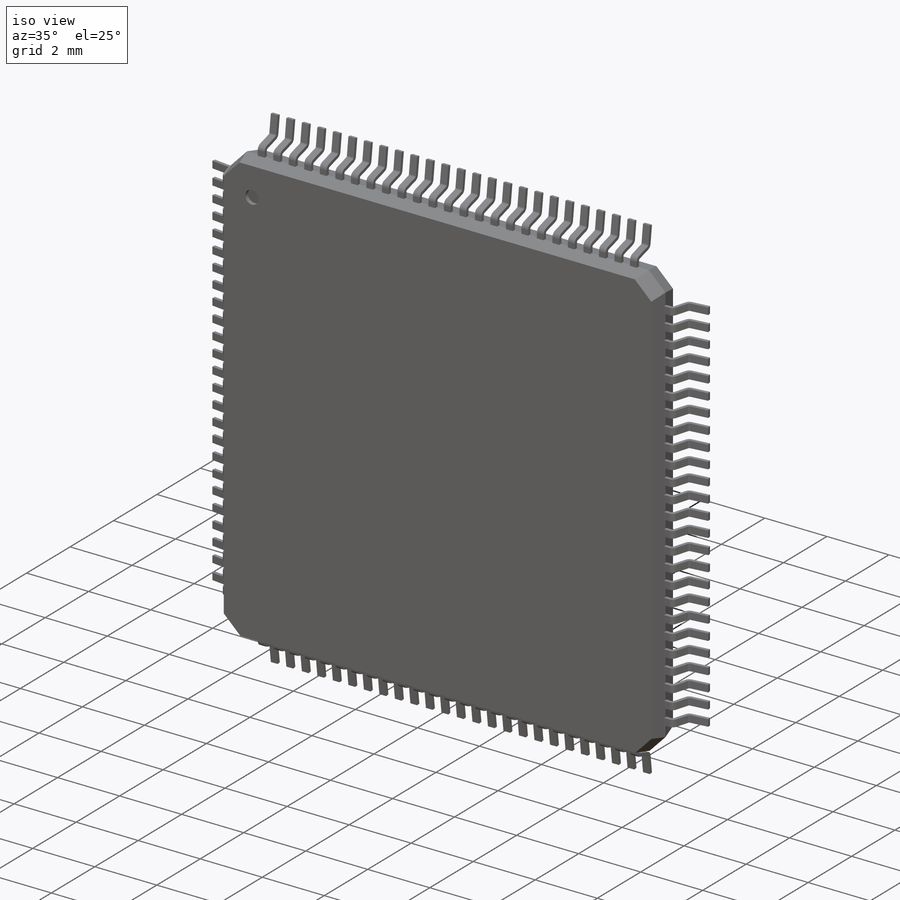
[diagram: iso view]
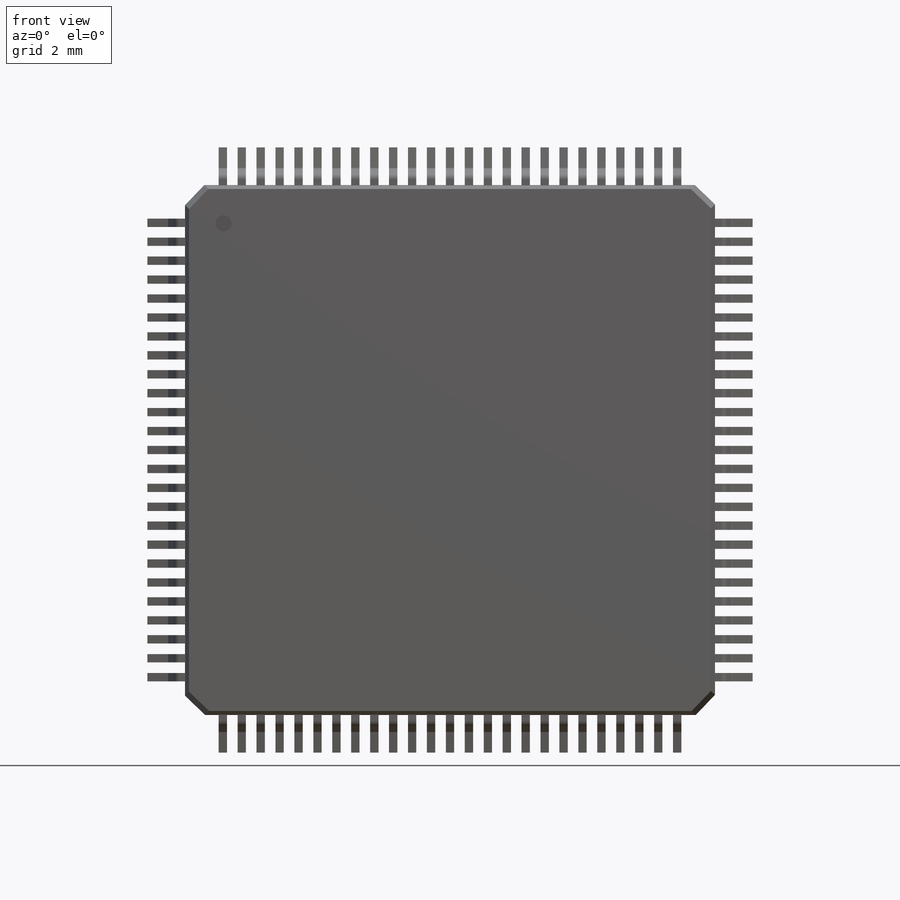
[diagram: front view]
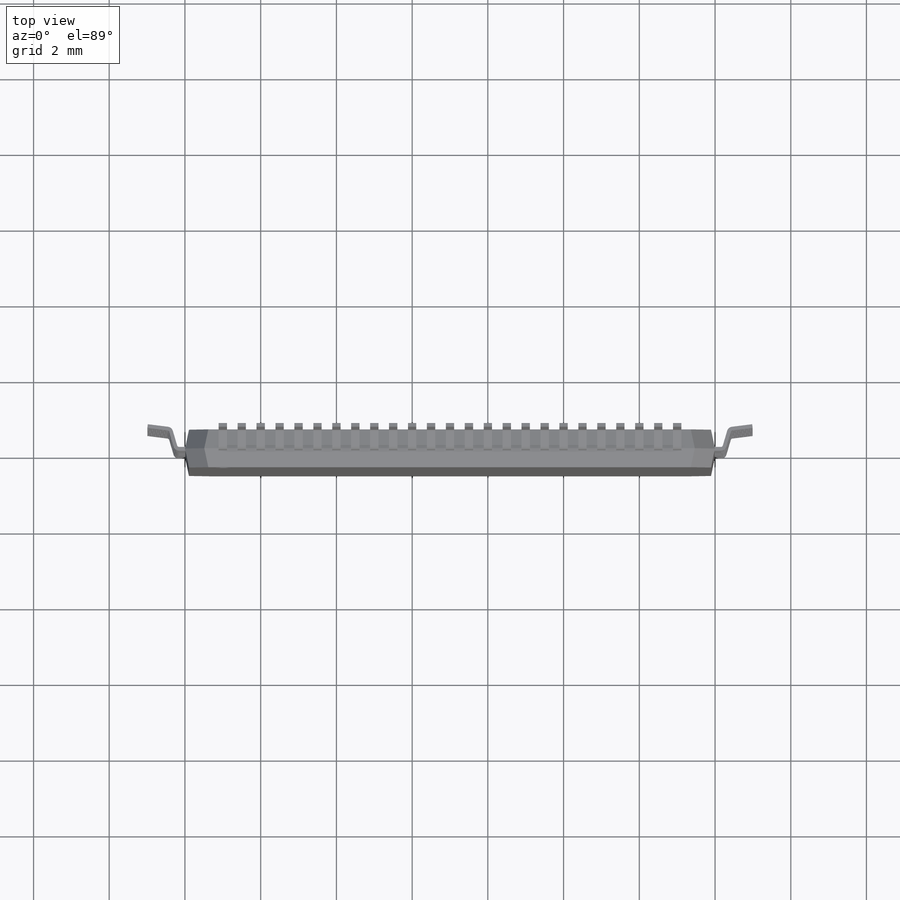
[diagram: top view]
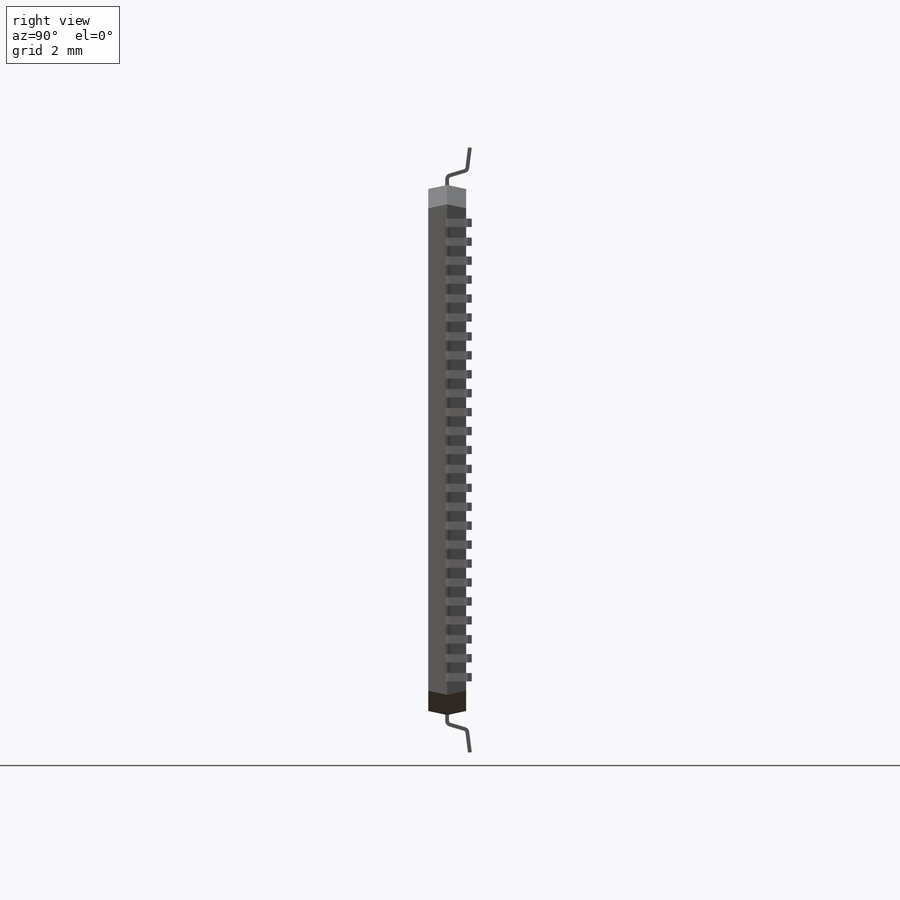
[diagram: right view]
SOLIDWORKS PART (.sldprt)
format: sldprt  version: not decoded by parser v0  size: 1,105,920 bytes
history: native  units: mm
features: sketch x4, extrude x2, material x1, chamfer x1, mirror x1, cut_extrude x1, plane x1, pattern_linear x1, pattern_circular x1 (+13 scaffold rows collapsed)
feature tree (26):
  scaffold x13  (default folders/planes/origin — collapsed)
  material  "Material <not specified>"
  sketch  "Sketch1"  dims[D1=14.0mm D2=14.0mm]
  extrude  "Boss-Extrude1"  Depth=0.5mm
  sketch  "Sketch2"
  extrude  "Boss-Extrude2"  Depth=0.5mm
  chamfer  "Chamfer1"  Distance=0.5mm Angle=45deg
  mirror  "Mirror3"
  sketch  "Sketch3"  dims[D1=1.016mm D2=1.016mm]
  cut_extrude  "Cut-Extrude1"  Depth=0.127mm
  plane  "Plane1"  Offset=1mm
  sketch  "Sketch4"  dims[c1.D1=1.0mm c1.D2=0.6mm c1.D3=0.6mm c2.D1=0.22mm c2.D5=0.1mm c2.D6=1.0mm c2.D7=0.05mm]
  pattern_linear  "LPattern1"  Count1=25 Count2=1 Spacing1=0.5mm Spacing2=2.54mm
  pattern_circular  "CirPattern10"  Count=4 Angle=360deg
decode coverage: 9 of 11 modeling features carry decoded parameters
note: suppression state not decoded; provenance and decode notes live in map.json
